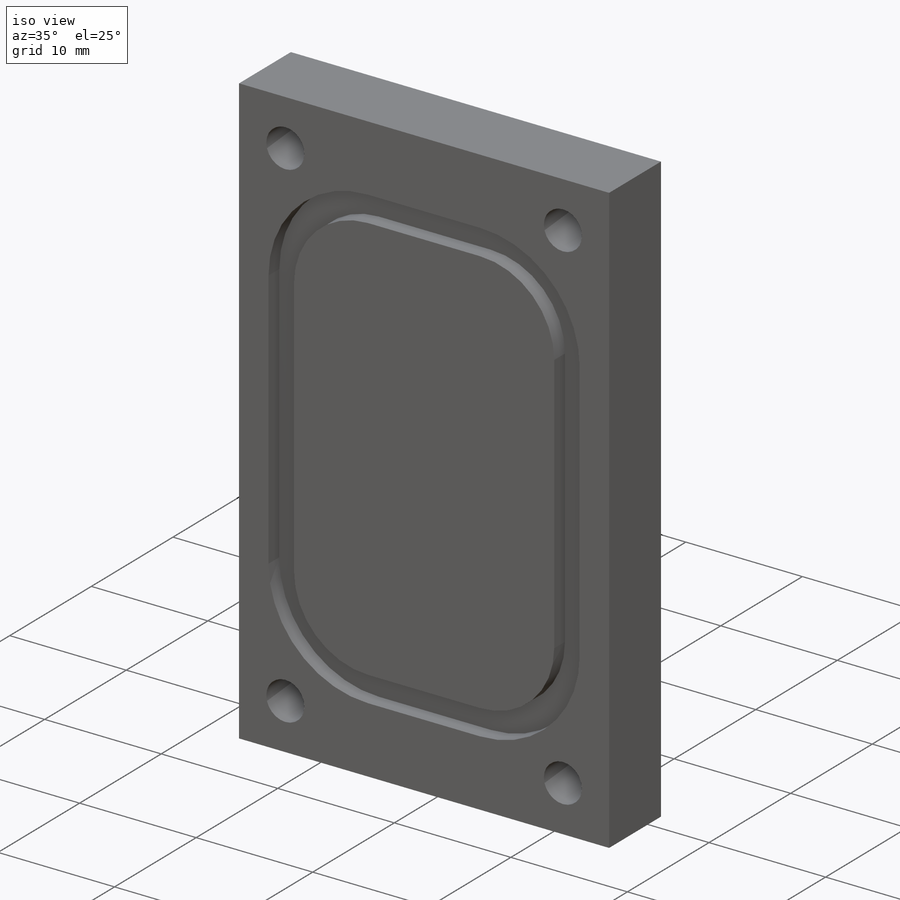
[diagram: iso view]
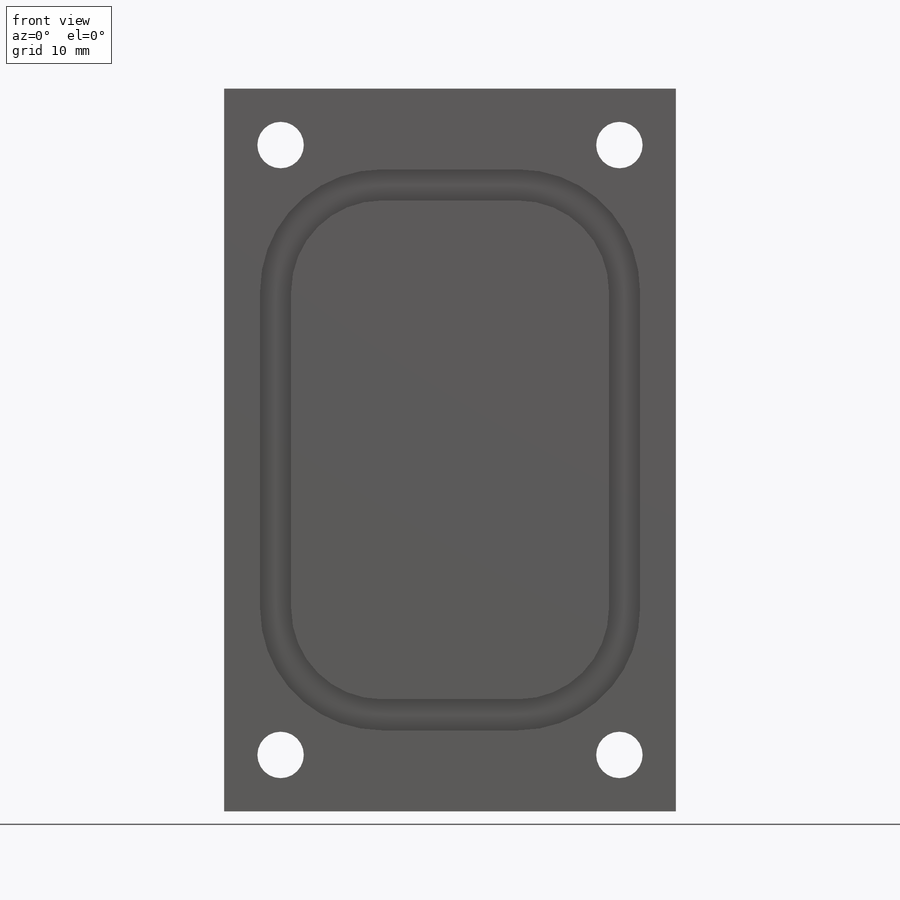
[diagram: front view]
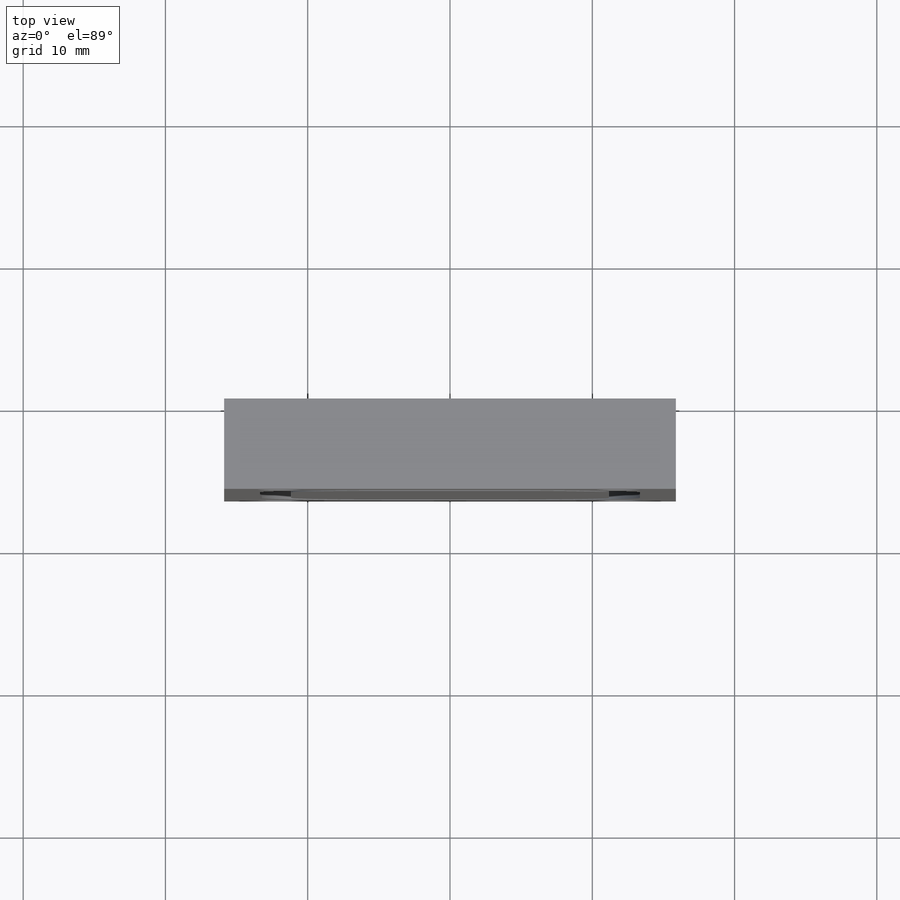
[diagram: top view]
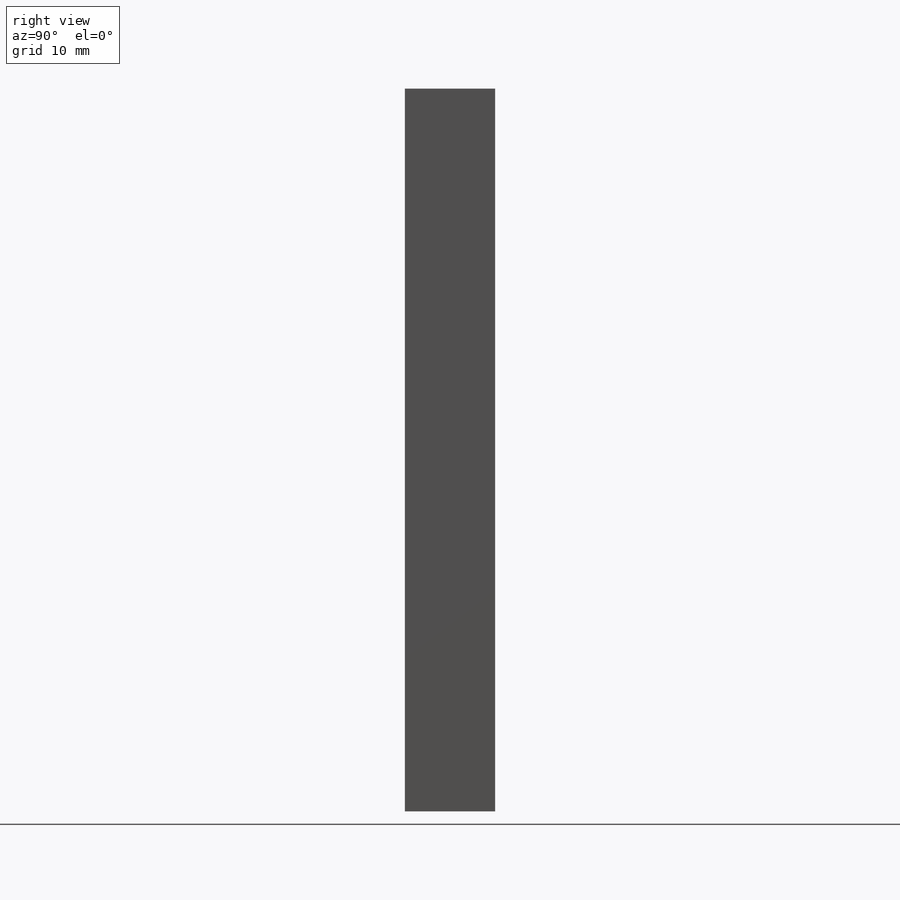
[diagram: right view]
SOLIDWORKS PART (.sldprt)
format: sldprt  version: not decoded by parser v0  size: 202,752 bytes
history: native  units: mm
features: sketch x4, material x1, extrude x1, cut_extrude x1, hole x1 (+11 scaffold rows collapsed)
feature tree (19):
  scaffold x11  (default folders/planes/origin — collapsed)
  material  "6061 Alloy"
  sketch  "Sketch1"  dims[c1.D1=~57.444794mm c1.D2=~50.241685mm c2.D1=31.75mm c2.D2=50.8mm]
  extrude  "Boss-Extrude1"  Depth=6.35mm
  sketch  "Sketch3"  dims[D1=~35.976121mm D2=9.6266mm D3=22.352mm D4=2.1844mm]
  cut_extrude  "Cut-Extrude2 - dash 027"  Depth=1.3208mm
  hole  "CSK for #4 Flat Head Machine Screw (100)1"  Diameter=3.2639mm Depth=6.35mm
  sketch  "Sketch7"  dims[c1.D1=~3.96875mm c1.D2=~3.96875mm c1.D3=~13.49375mm c1.D4=~13.49375mm c2.D3=~11.90625mm c2.D4=~11.90625mm]
  sketch  "Sketch6"  dims[hole-wizard template sketch: 55 standard entries collapsed; hole parameters kept: c17.Thru Hole Depth=6.35mm c17.Near C'Sink Dia.=5.715mm c17.D4=~3.666174mm c17.Near C'Sink Angle=100.0deg]
decode coverage: 7 of 7 modeling features carry decoded parameters
note: ~ marks probable driven/reference dimensions
note: suppression state not decoded; provenance and decode notes live in map.json
